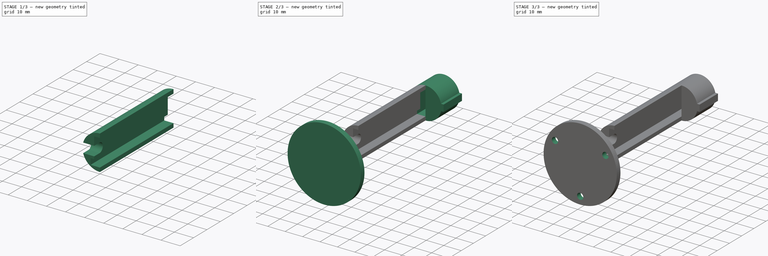
[diagram: build sequence overview — one tinted view per stage of 3, left to right]
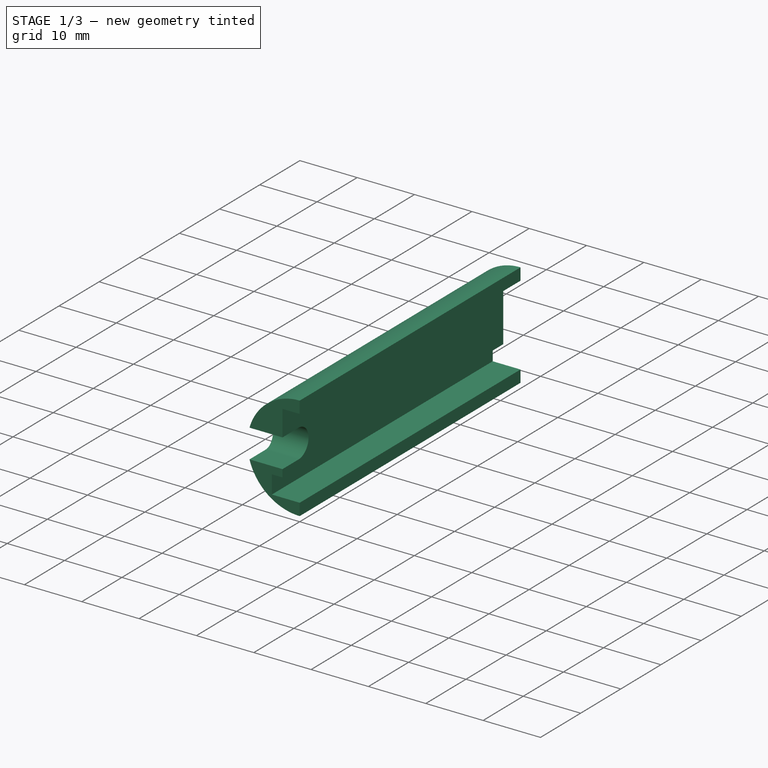
[diagram: stage 1 of 3 — iso view after this stage's code; geometry added in this stage tinted green]
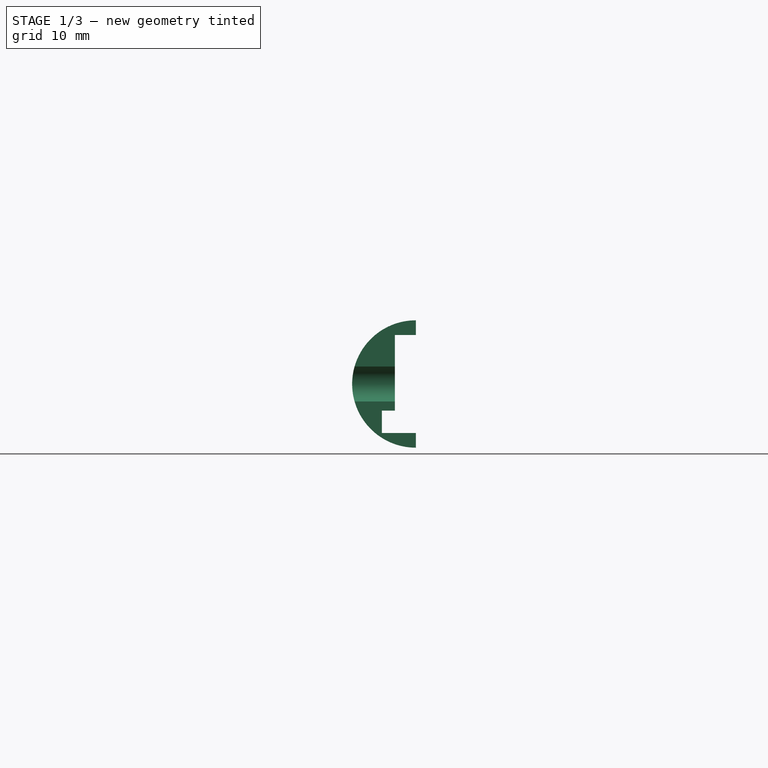
[diagram: stage 1 of 3 — front view after this stage's code; geometry added in this stage tinted green]
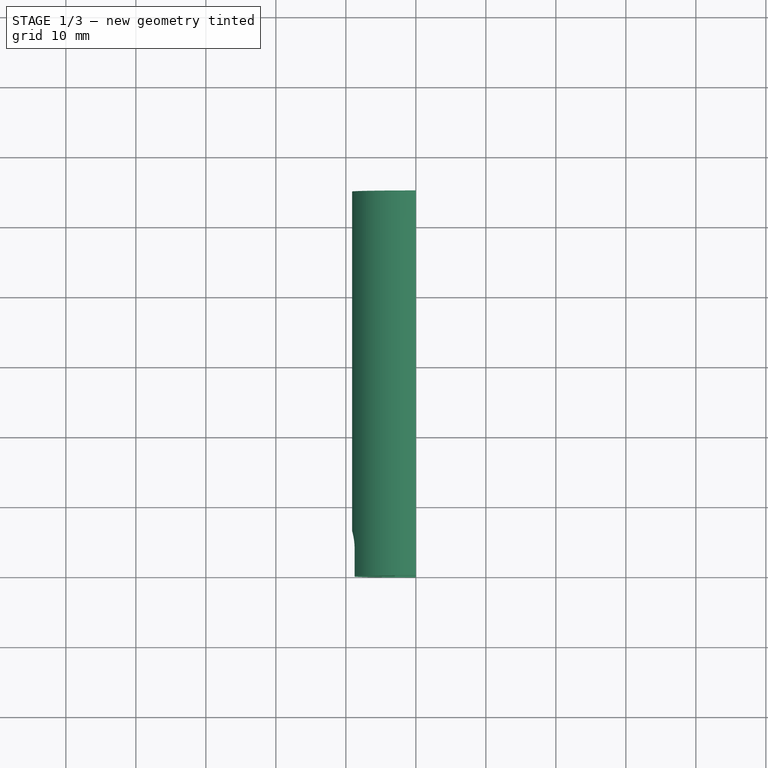
[diagram: stage 1 of 3 — top view after this stage's code; geometry added in this stage tinted green]
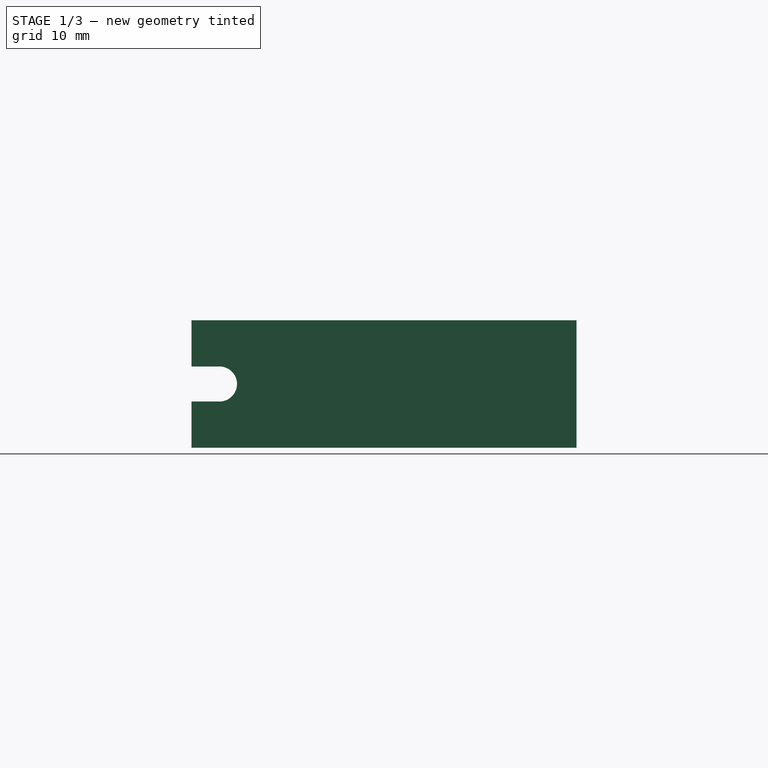
[diagram: stage 1 of 3 — right view after this stage's code; geometry added in this stage tinted green]
FCSTD DOCUMENT  (FreeCAD 0.19R23074 (Git))
Label: reggi_magnetometro_v6
License: All rights reserved
LicenseURL: http://en.wikipedia.org/wiki/All_rights_reserved
objects: Sketcher::SketchObject×6, PartDesign::Pad×3, PartDesign::Pocket×3, PartDesign::Body×3, PartDesign::ShapeBinder×1, PartDesign::PolarPattern×1
note: 23 computed .brp shape members not serialized (recipe doc carries the construction recipe); baked Part::Feature solids carry a one-line shape summary decoded from their .brp

FEATURE [PartDesign::Body] Body001  label="magnetometer"
  Group = -> [Sketch,Pad,Sketch001,Pocket]
  Origin = -> Origin001
  Tip = -> Pocket
FEATURE [Sketcher::SketchObject] Sketch010
  MapMode = 5
  Placement = pos=(0,-15,3e-15) rot=(1,0,0;1.5708rad)
  sketch-geometry (8):
    g0: LineSegment StartX=0 StartY=7 StartZ=0 EndX=-3 EndY=7 EndZ=0
    g1: LineSegment StartX=-3 StartY=7 StartZ=0 EndX=-3 EndY=-3.81 EndZ=0
    g2: LineSegment StartX=-3 StartY=-3.81 StartZ=0 EndX=-4.85 EndY=-3.81 EndZ=0
    g3: LineSegment StartX=-4.85 StartY=-3.81 StartZ=0 EndX=-4.85 EndY=-7 EndZ=0
    g4: LineSegment StartX=-4.85 StartY=-7 StartZ=0 EndX=-1.8e-15 EndY=-7 EndZ=0
    g5: LineSegment StartX=-1.7e-15 StartY=-7 StartZ=0 EndX=-1.7e-15 EndY=-9.1 EndZ=0
    g6: LineSegment StartX=0 StartY=7 StartZ=0 EndX=-2.74299e-07 EndY=9.1 EndZ=0
    g7: ArcOfCircle CenterX=0 CenterY=0 CenterZ=0 NormalX=0 NormalY=0 NormalZ=1 AngleXU=0 Radius=9.1 StartAngle=1.5708 EndAngle=4.71239
  constraints (10):
    c: Coincident(g0,g1)
    c: Coincident(g1,g2)
    c: Coincident(g2,g3)
    c: Coincident(g3,g4)
    c: Coincident(g4,g5)
    c: Vertical(g5)
    c: Coincident(g6,g0)
    c: Coincident(g7,g-1)
    c: Coincident(g7,g5)
    c: Coincident(g7,g6)
FEATURE [PartDesign::Pad] Pad006
  Direction = (1,1,1)
  Length = 55
  Length2 = 100
  Placement = pos=(0,-15,3e-15) rot=(1,0,0;1.5708rad)
  Profile = -> Sketch010
  Type = 0
FEATURE [Sketcher::SketchObject] Sketch013
  ExternalGeometry = -> [Pad006]
  MapMode = 5
  Placement = pos=(-3,-15,3e-15) rot=(0.707107,0,0.707107;3.14159rad)
  Support = -> [Pad006]
  sketch-geometry (4):
    g0: ArcOfCircle CenterX=-2e-16 CenterY=51 CenterZ=0 NormalX=0 NormalY=0 NormalZ=1 AngleXU=0 Radius=2.5 StartAngle=3.14159 EndAngle=6.28319
    g1: LineSegment StartX=-2.5 StartY=51 StartZ=0 EndX=-2.5 EndY=55 EndZ=0
    g2: LineSegment StartX=2.5 StartY=51 StartZ=0 EndX=2.5 EndY=55 EndZ=0
    g3: LineSegment StartX=-2.5 StartY=55 StartZ=0 EndX=2.5 EndY=55 EndZ=0
  constraints (12):
    c: Radius(g0) = 2.5
    c: Coincident(g1,g0)
    c: PointOnObject(g1,g-3)
    c: Vertical(g1)
    c: Coincident(g2,g0)
    c: PointOnObject(g2,g-3)
    c: Vertical(g2)
    c: Coincident(g3,g1)
    c: Coincident(g3,g2)
    c: Symmetric(g0,g0,g-2)
    c: DistanceY(g0,g2) = 4
    c: DistanceY(g0,g0) = 0
FEATURE [PartDesign::Pocket] Pocket002
  BaseFeature = -> Pad006
  Length = 5
  Length2 = 100
  Placement = pos=(0,-15,3e-15) rot=(1,0,0;1.5708rad)
  Profile = -> Sketch013
  Type = 1
FEATURE [PartDesign::Body] Body  label="gambo"
  Group = -> [Pad006,Sketch013,Pocket002]
  Origin = -> Origin
  Tip = -> Pocket002
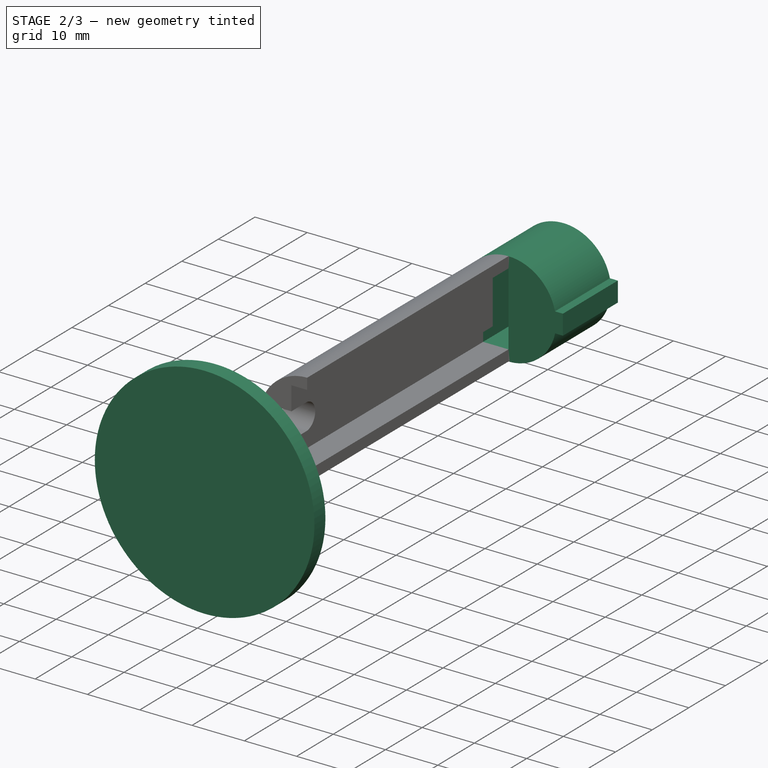
[diagram: stage 2 of 3 — iso view after this stage's code; geometry added in this stage tinted green]
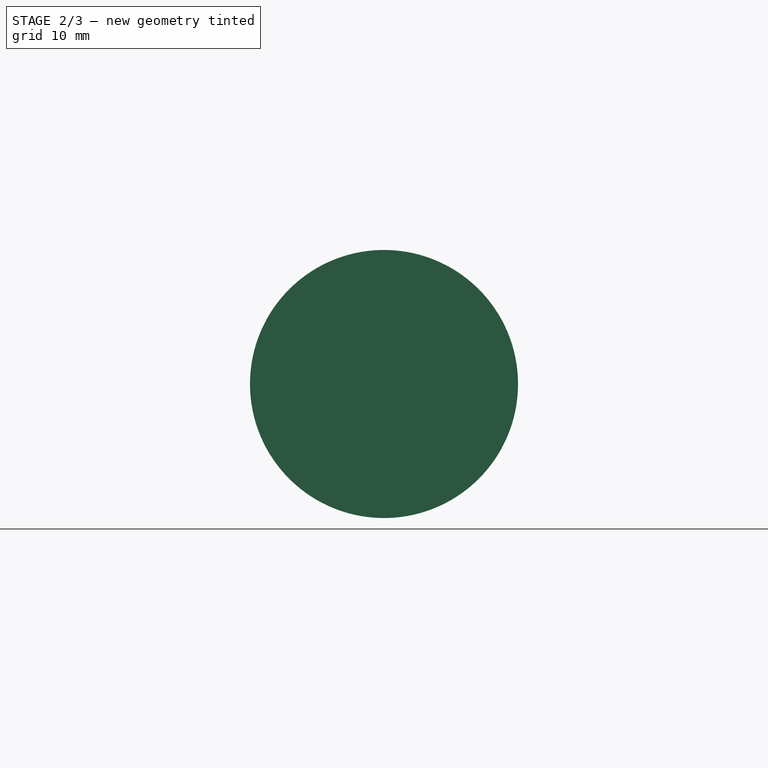
[diagram: stage 2 of 3 — front view after this stage's code; geometry added in this stage tinted green]
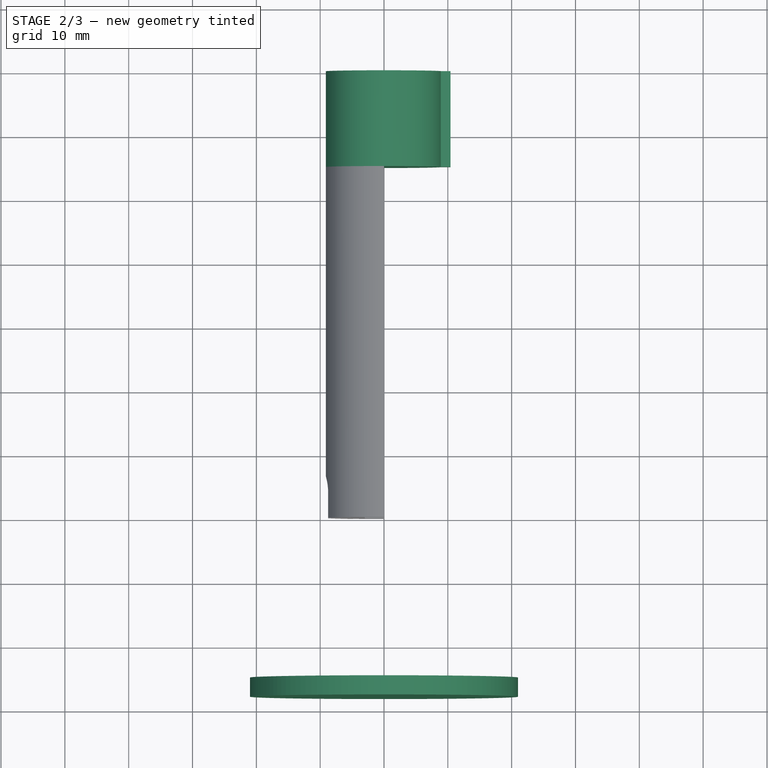
[diagram: stage 2 of 3 — top view after this stage's code; geometry added in this stage tinted green]
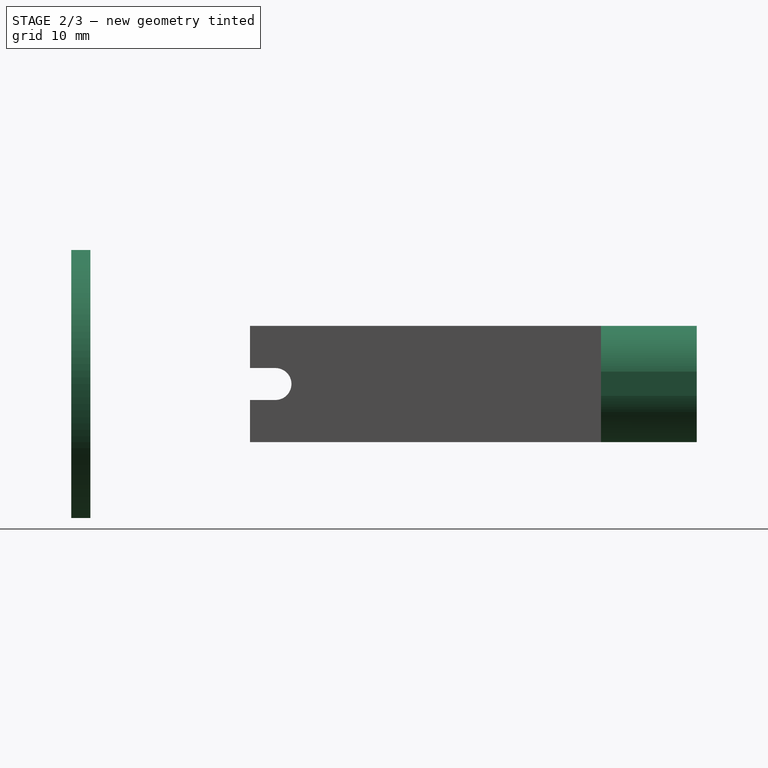
[diagram: stage 2 of 3 — right view after this stage's code; geometry added in this stage tinted green]
FEATURE [PartDesign::ShapeBinder] CopyPad001
  Placement = pos=(0,-80,1.38e-13) rot=(0,0,1;0rad)
  TraceSupport = false
FEATURE [Sketcher::SketchObject] Sketch003
  MapMode = 5
  Placement = pos=(0,-95,1.591e-13) rot=(1,0,0;1.5708rad)
  Support = -> [CopyPad001]
  sketch-geometry (1):
    g0: Circle CenterX=0 CenterY=0 CenterZ=0 NormalX=0 NormalY=0 NormalZ=1 AngleXU=0 Radius=21
  constraints (2):
    c: Coincident(g0,g-1)
    c: Radius(g0) = 21
FEATURE [PartDesign::Pad] Pad002
  Direction = (1,1,1)
  Length = 3
  Length2 = 100
  Placement = pos=(0,-80,1.38e-13) rot=(0,0,1;0rad)
  Profile = -> Sketch003
  Type = 0
FEATURE [PartDesign::Body] Body003  label="base"
  Group = -> [CopyPad001,Sketch003,Pad002,Sketch004,Pocket001,PolarPattern]
  Origin = -> Origin003
  Placement = pos=(0,25,0) rot=(0,0,1;0rad)
  Tip = -> PolarPattern
FEATURE [Sketcher::SketchObject] Sketch
  MapMode = 5
  Placement = pos=(0,0,0) rot=(1,0,0;1.5708rad)
  Support = -> [XZ_Plane001]
  sketch-geometry (7):
    g0: ArcOfCircle CenterX=0 CenterY=0 CenterZ=0 NormalX=0 NormalY=0 NormalZ=1 AngleXU=0 Radius=9.1 StartAngle=0.215443 EndAngle=6.07795
    g1: LineSegment StartX=8.88962 StartY=1.9454 StartZ=0 EndX=10.409 EndY=1.9454 EndZ=0
    g2: LineSegment StartX=10.409 StartY=1.9454 StartZ=0 EndX=10.409 EndY=-1.8546 EndZ=0
    g3: LineSegment StartX=10.409 StartY=-1.8546 StartZ=0 EndX=8.90901 EndY=-1.8546 EndZ=0
    g4: GeomPoint X=8.90901 Y=-1.8546 Z=0
    g5: GeomPoint X=8.90901 Y=-1.8546 Z=0
    g6: GeomPoint X=8.89919 Y=-1.90114 Z=0
  constraints (13):
    c: Coincident(g0,g-1)
    c: Radius(g0) = 9.1
    c: Coincident(g1,g2)
    c: Coincident(g2,g3)
    c: Horizontal(g1)
    c: Horizontal(g3)
    c: Vertical(g2)
    c: DistanceY(g2,g1) = 3.8
    c: DistanceX(g3,g3) = 1.5
    c: Coincident(g4,g0)
    c: Coincident(g5,g3)
    c: Coincident(g3,g0)
    c: Coincident(g1,g0)
FEATURE [PartDesign::Pad] Pad
  AllowMultiFace = false
  Direction = (1,1,1)
  Length = 15
  Length2 = 100
  Placement = pos=(0,0,0) rot=(1,0,0;1.5708rad)
  Profile = -> Sketch
  Type = 0
FEATURE [Sketcher::SketchObject] Sketch001
  MapMode = 5
  Placement = pos=(0,-15,3.3e-15) rot=(1,0,0;1.5708rad)
  Support = -> [Pad]
  sketch-geometry (6):
    g0: LineSegment StartX=0 StartY=7 StartZ=0 EndX=0 EndY=-7 EndZ=0
    g1: LineSegment StartX=0 StartY=-7 StartZ=0 EndX=-4.85 EndY=-7 EndZ=0
    g2: LineSegment StartX=-4.85 StartY=-3.81 StartZ=0 EndX=-3 EndY=-3.81 EndZ=0
    g3: LineSegment StartX=-3 StartY=-3.81 StartZ=0 EndX=-3 EndY=7 EndZ=0
    g4: LineSegment StartX=-3 StartY=7 StartZ=0 EndX=0 EndY=7 EndZ=0
    g5: LineSegment StartX=-4.85 StartY=-3.81 StartZ=0 EndX=-4.85 EndY=-7 EndZ=0
  constraints (17):
    c: Coincident(g0,g1)
    c: Coincident(g2,g3)
    c: Coincident(g3,g4)
    c: Coincident(g4,g0)
    c: Horizontal(g4)
    c: Symmetric(g0,g0,g-1)
    c: DistanceY(g0,g0) = 14
    c: DistanceX(g4,g4) = 3
    c: DistanceY(g3,g3) = 10.81
    c: DistanceX(g2,g2) = 1.85
    c: Coincident(g5,g2)
    c: Coincident(g5,g1)
    c: Vertical(g5)
    c: Horizontal(g1)
    c: PointOnObject(g0,g-2)
    c: Horizontal(g2)
    c: Vertical(g3)
FEATURE [PartDesign::Pocket] Pocket
  BaseFeature = -> Pad
  Length = 12
  Length2 = 100
  Placement = pos=(0,0,0) rot=(1,0,0;1.5708rad)
  Profile = -> Sketch001
  Type = 0
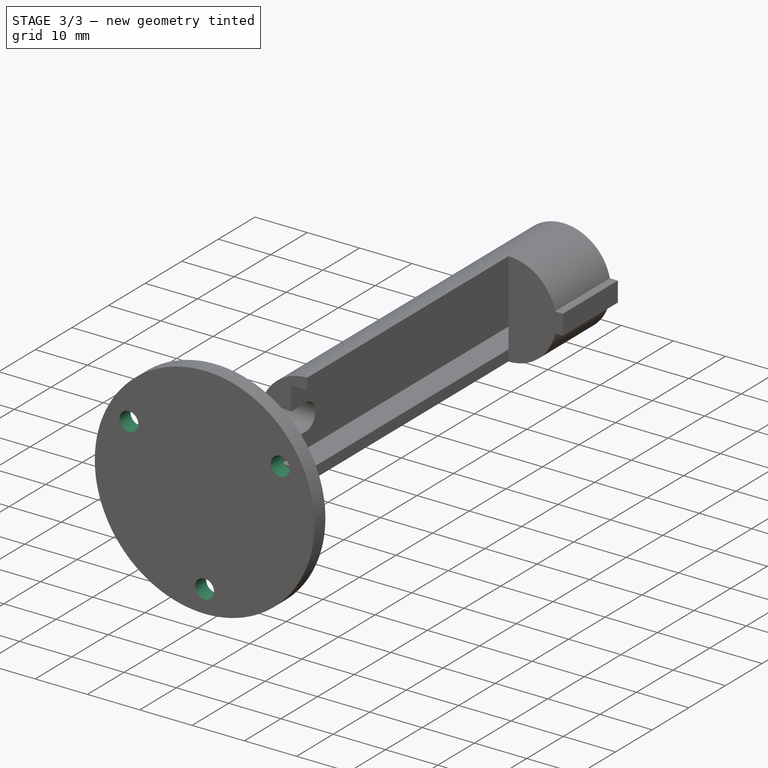
[diagram: stage 3 of 3 — iso view after this stage's code; geometry added in this stage tinted green]
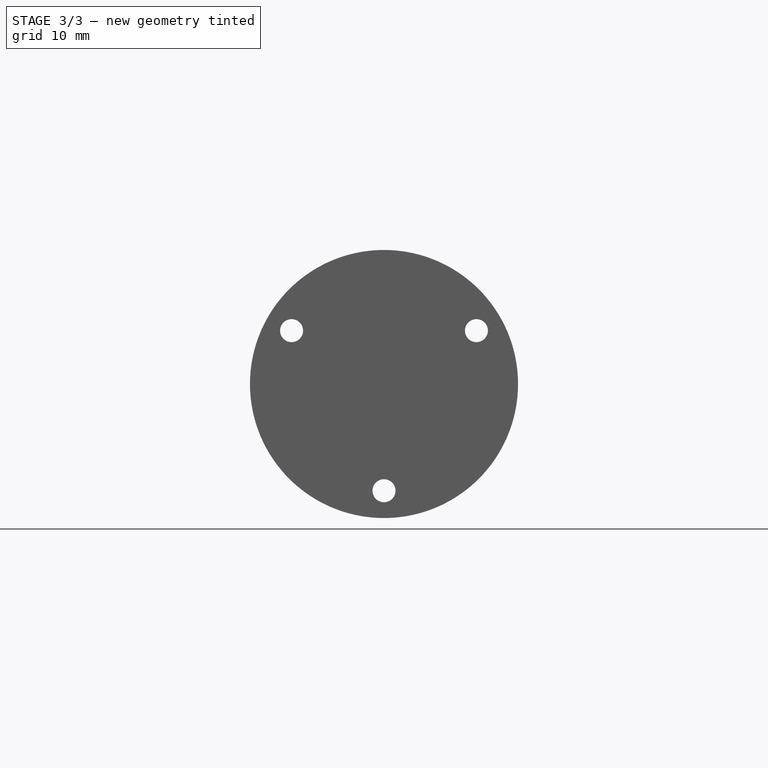
[diagram: stage 3 of 3 — front view after this stage's code; geometry added in this stage tinted green]
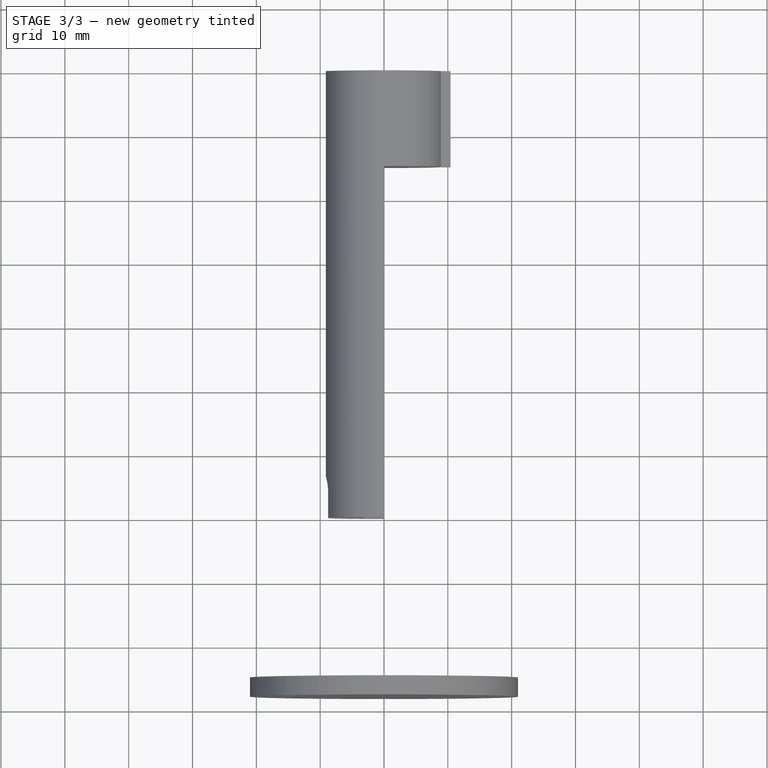
[diagram: stage 3 of 3 — top view after this stage's code; geometry added in this stage tinted green]
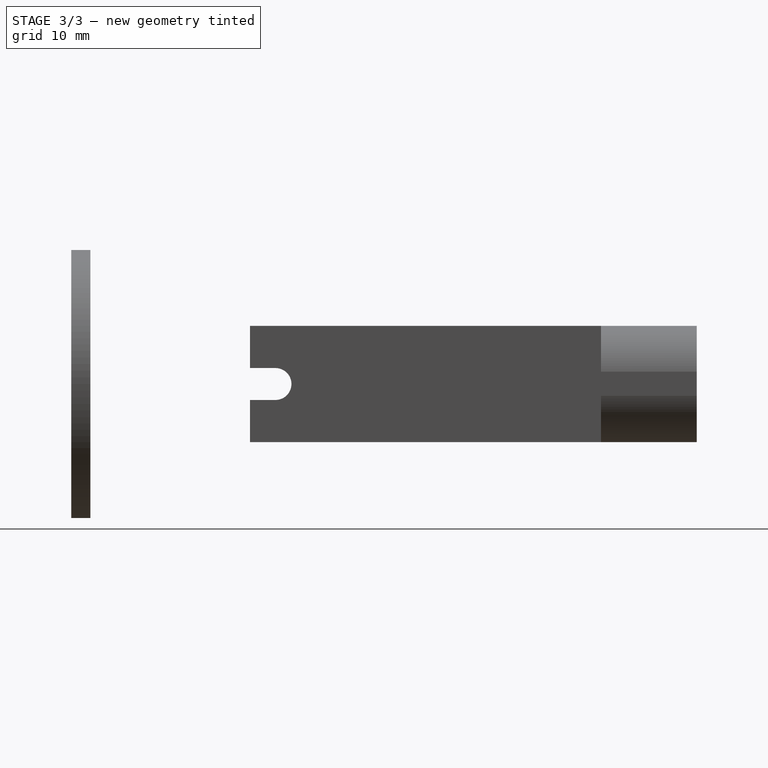
[diagram: stage 3 of 3 — right view after this stage's code; geometry added in this stage tinted green]
FEATURE [Sketcher::SketchObject] Sketch004
  MapMode = 5
  Placement = pos=(0,-98,-5.36442e-07) rot=(1,0,0;1.5708rad)
  Support = -> [Pad002]
  sketch-geometry (1):
    g0: Circle CenterX=0 CenterY=-16.72 CenterZ=0 NormalX=0 NormalY=0 NormalZ=1 AngleXU=0 Radius=1.8
  constraints (3):
    c: PointOnObject(g0,g-2)
    c: Radius(g0) = 1.8
    c: DistanceY(g0,g-1) = 16.72
FEATURE [PartDesign::Pocket] Pocket001
  BaseFeature = -> Pad002
  Length = 5
  Length2 = 100
  Placement = pos=(0,-80,1.38e-13) rot=(0,0,1;0rad)
  Profile = -> Sketch004
  Type = 1
FEATURE [PartDesign::PolarPattern] PolarPattern
  Angle = 360
  Axis = -> Sketch004 [N_Axis]
  BaseFeature = -> Pocket001
  Occurrences = 3
  Originals = -> [Pocket001]
  Placement = pos=(0,-80,1.38e-13) rot=(0,0,1;0rad)
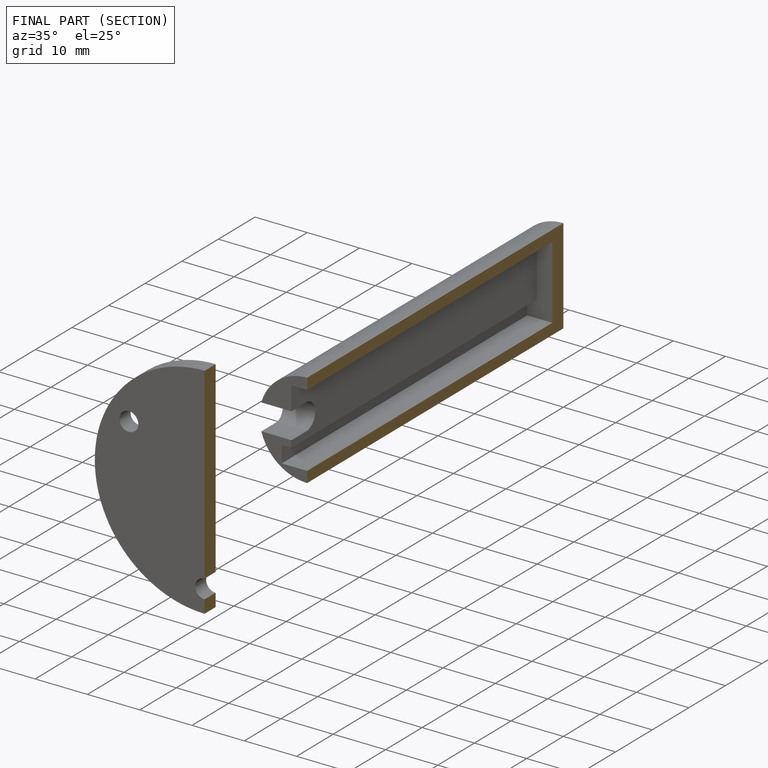
[diagram: finished part — half-section view (interior)]
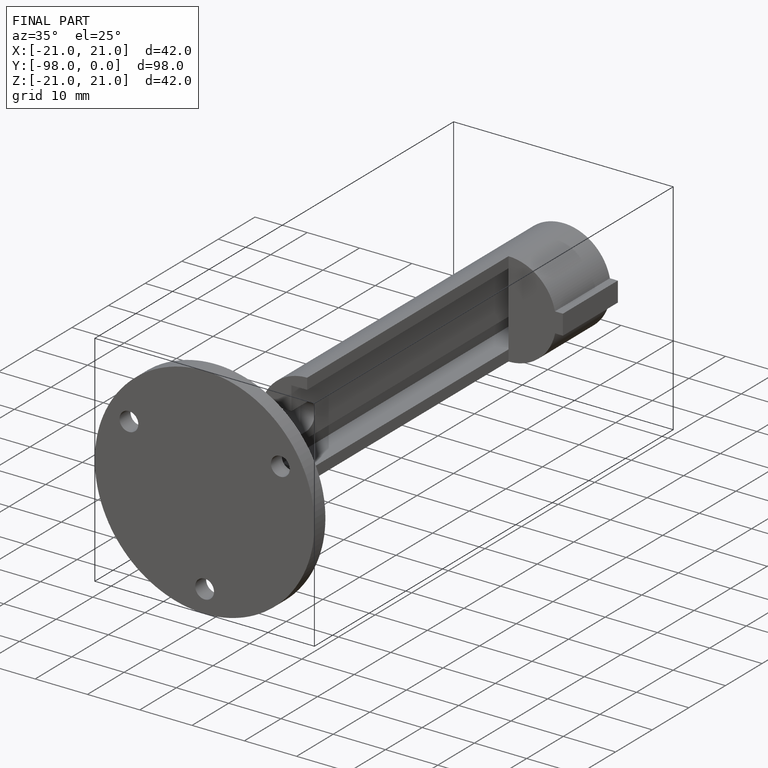
[diagram: finished part — iso view with bounding-box wireframe]
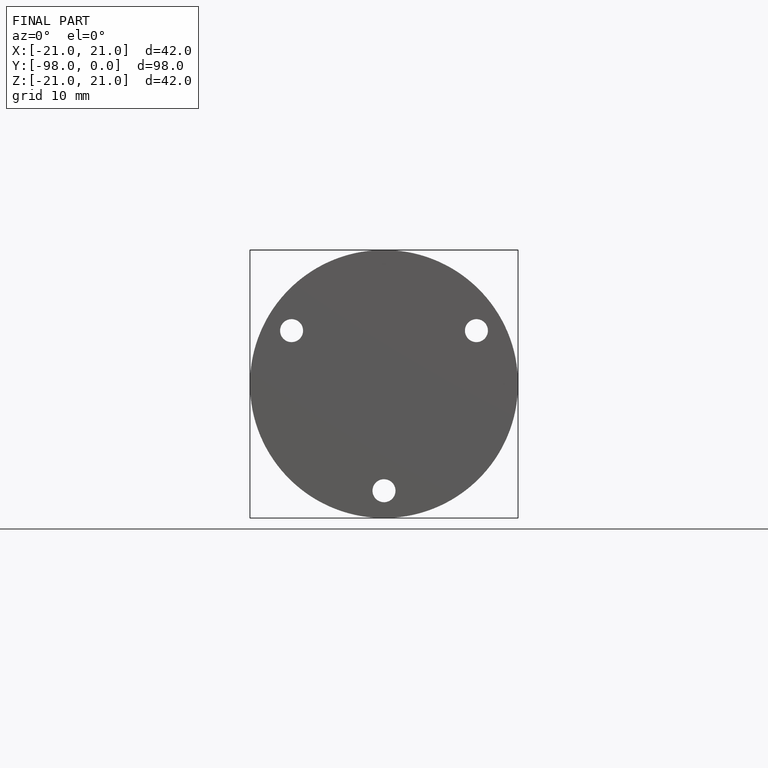
[diagram: finished part — front view with bounding-box wireframe]
